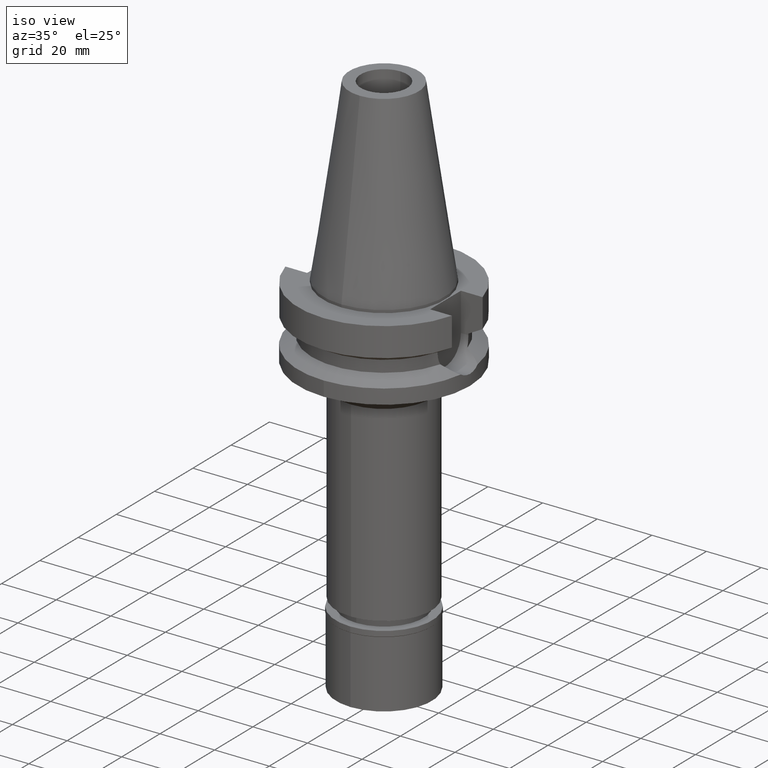
[diagram: clean part render]
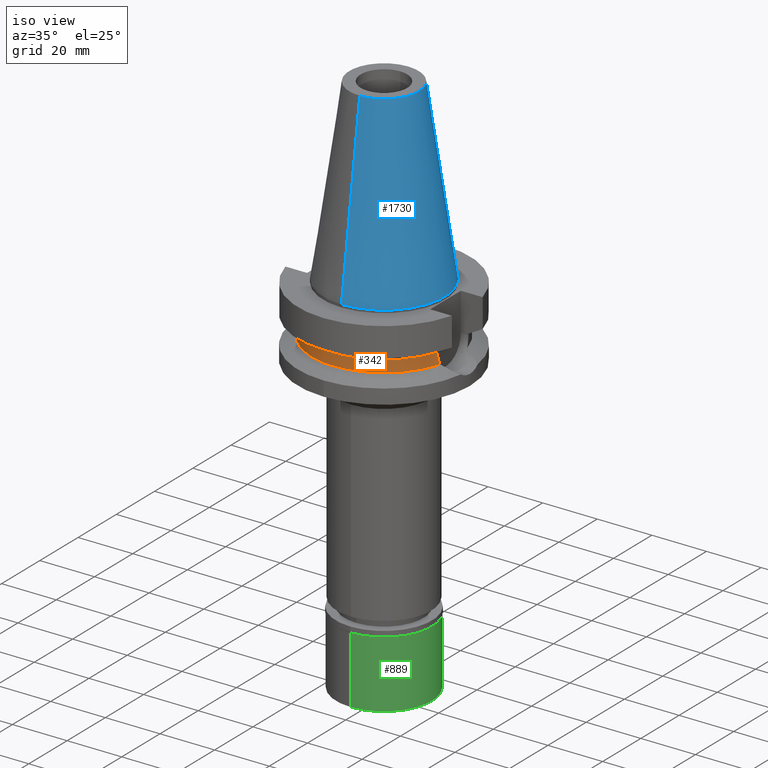
[diagram: same view with three faces highlighted in distinct colors, each labeled with its STEP entity id]
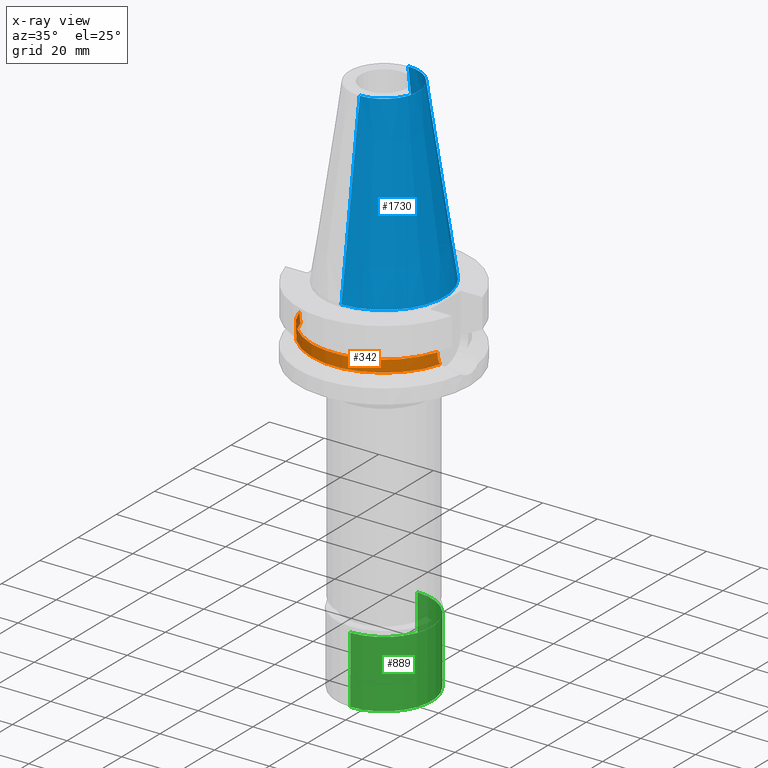
[diagram: x-ray of the same camera — body ghosted, the three highlighted faces saturated]
A machine part, iso view with three faces highlighted in distinct colors.
The next image is the same camera in x-ray (body ghosted, the three faces saturated) — at least one of them is partly hidden behind the body in this view.
Their STEP definitions:

[orange] entity #342 — the highlighted cylindrical surface (partial cylindrical patch) has radius 26.5 mm, axis along (0, 0, -1).
#35 = CARTESIAN_POINT ( 'NONE',  ( 25.29454292549445782, -7.902026734854635137, -16.48861329468615011 ) ) ;
#56 = CARTESIAN_POINT ( 'NONE',  ( -25.39161415870588456, -7.584927955021788293, -17.65164487468281251 ) ) ;
#69 = EDGE_CURVE ( 'NONE', #1964, #432, #2885, .T. ) ;
#75 = DIRECTION ( 'NONE',  ( -2.936722796047909751E-06, 9.210634716699719199E-06, 0.9999999999532699357 ) ) ;
#89 = CARTESIAN_POINT ( 'NONE',  ( -25.44390372128112077, -7.408325733453222206, -18.11690357828249986 ) ) ;
#186 = VERTEX_POINT ( 'NONE', #364 ) ;
#283 = CARTESIAN_POINT ( 'NONE',  ( -25.53175183775000079, -7.097862220092999941, -18.74774300138999905 ) ) ;
#284 = DIRECTION ( 'NONE',  ( 0.0000000000000000000, 0.0000000000000000000, -1.000000000000000000 ) ) ;
#342 = ADVANCED_FACE ( 'NONE', ( #1897 ), #1403, .T. ) ;
#364 = CARTESIAN_POINT ( 'NONE',  ( -25.24772413120999914, -8.049995415794001019, -14.45229202793000134 ) ) ;
#393 = VERTEX_POINT ( 'NONE', #3107 ) ;
#432 = VERTEX_POINT ( 'NONE', #3057 ) ;
#562 = LINE ( 'NONE', #1287, #1204 ) ;
#735 = LINE ( 'NONE', #1884, #3038 ) ;
#773 = EDGE_CURVE ( 'NONE', #432, #186, #562, .T. ) ;
#780 = CARTESIAN_POINT ( 'NONE',  ( -25.35408242312715998, -7.708967322931910893, -17.26962711324177135 ) ) ;
#799 = CIRCLE ( 'NONE', #1940, 26.50000000000000711 ) ;
#825 = CARTESIAN_POINT ( 'NONE',  ( 25.24772266958000344, -8.050000000000000711, -14.45225699861000024 ) ) ;
#911 = CIRCLE ( 'NONE', #1715, 26.50000000000000000 ) ;
#963 = CARTESIAN_POINT ( 'NONE',  ( 25.31953811419878164, -7.821417378317978120, -16.85482737181421342 ) ) ;
#1008 = CARTESIAN_POINT ( 'NONE',  ( 25.30215121708054227, -7.877593292754585086, -16.61077438410653784 ) ) ;
#1060 = CARTESIAN_POINT ( 'NONE',  ( -25.37569502948930733, -7.637838761477345528, -17.49780446183530813 ) ) ;
#1193 = CARTESIAN_POINT ( 'NONE',  ( 25.25396537036859712, -8.030898972450222217, -15.59374611992973492 ) ) ;
#1204 = VECTOR ( 'NONE', #75, 1000.000000000000114 ) ;
#1238 = CARTESIAN_POINT ( 'NONE',  ( -25.27267964220303043, -7.973335155931463802, -16.24499043154098388 ) ) ;
#1287 = CARTESIAN_POINT ( 'NONE',  ( -25.24772266958000344, -8.050000000000000711, -14.94999999999999929 ) ) ;
#1315 = ORIENTED_EDGE ( 'NONE', *, *, #773, .F. ) ;
#1403 = CYLINDRICAL_SURFACE ( 'NONE', #2095, 26.50000000000000000 ) ;
#1503 = CARTESIAN_POINT ( 'NONE',  ( -25.24772266958000699, -8.050000000000000711, -15.58980474858213938 ) ) ;
#1591 = EDGE_LOOP ( 'NONE', ( #2119, #1716, #3074, #2538, #1724, #1315 ) ) ;
#1628 = DIRECTION ( 'NONE',  ( 0.0000000000000000000, 0.0000000000000000000, 1.000000000000000000 ) ) ;
#1700 = CARTESIAN_POINT ( 'NONE',  ( 25.28049684872012293, -7.946995976261309380, -16.24428919065877608 ) ) ;
#1714 = EDGE_CURVE ( 'NONE', #1964, #393, #911, .T. ) ;
#1715 = AXIS2_PLACEMENT_3D ( 'NONE', #3052, #1628, #3018 ) ;
#1716 = ORIENTED_EDGE ( 'NONE', *, *, #1714, .T. ) ;
#1724 = ORIENTED_EDGE ( 'NONE', *, *, #2362, .T. ) ;
#1726 = CARTESIAN_POINT ( 'NONE',  ( -25.34384264181177926, -7.742472632649030295, -17.15618260535354977 ) ) ;
#1741 = CARTESIAN_POINT ( 'NONE',  ( -25.32546393109958061, -7.802212764474003137, -16.93200521438838990 ) ) ;
#1884 = CARTESIAN_POINT ( 'NONE',  ( 25.24772216363000155, -8.050001586837000289, -14.45224487378000156 ) ) ;
#1897 = FACE_OUTER_BOUND ( 'NONE', #1591, .T. ) ;
#1907 = EDGE_CURVE ( 'NONE', #2883, #393, #2079, .T. ) ;
#1940 = AXIS2_PLACEMENT_3D ( 'NONE', #2221, #284, #1966 ) ;
#1959 = CARTESIAN_POINT ( 'NONE',  ( 25.24772266958000699, -8.049999999999998934, -15.26998451552480596 ) ) ;
#1964 = VERTEX_POINT ( 'NONE', #2688 ) ;
#1966 = DIRECTION ( 'NONE',  ( 0.9527442516822307583, -0.3037735849057093818, 0.0000000000000000000 ) ) ;
#2079 = B_SPLINE_CURVE_WITH_KNOTS ( 'NONE', 3,
 ( #2864, #1959, #1193, #2196, #1700, #35, #1008, #2149, #3080, #963, #2620, #2443, #2130, #2918 ),
 .UNSPECIFIED., .F., .F.,
 ( 4, 2, 2, 1, 1, 2, 2, 4 ),
 ( 0.0000000000000000000, 0.2500000000000069389, 0.3750000000000104361, 0.4375000000000135447, 0.4687500000000150990, 0.4843750000000147105, 0.5000000000000143219, 1.000000000000000000 ),
 .UNSPECIFIED. ) ;
#2095 = AXIS2_PLACEMENT_3D ( 'NONE', #2854, #2810, #2403 ) ;
#2119 = ORIENTED_EDGE ( 'NONE', *, *, #69, .F. ) ;
#2130 = CARTESIAN_POINT ( 'NONE',  ( 25.43788225503733003, -7.435520914581282170, -18.11666952168581446 ) ) ;
#2149 = CARTESIAN_POINT ( 'NONE',  ( 25.31205175036245336, -7.845641664298890205, -16.75318037307338770 ) ) ;
#2172 = CARTESIAN_POINT ( 'NONE',  ( 25.24772266958000344, -8.050000000000000711, -14.94999999999999929 ) ) ;
#2196 = CARTESIAN_POINT ( 'NONE',  ( 25.27269347273437461, -7.971777372259774452, -16.08140504253947611 ) ) ;
#2220 = EDGE_CURVE ( 'NONE', #3112, #2883, #735, .T. ) ;
#2221 = CARTESIAN_POINT ( 'NONE',  ( 0.0000000000000000000, 0.0000000000000000000, -14.45225699861000024 ) ) ;
#2362 = EDGE_CURVE ( 'NONE', #3112, #186, #799, .T. ) ;
#2403 = DIRECTION ( 'NONE',  ( 0.0000000000000000000, -1.000000000000000000, 0.0000000000000000000 ) ) ;
#2443 = CARTESIAN_POINT ( 'NONE',  ( 25.36817666880170563, -7.663730637058529638, -17.48830498329490979 ) ) ;
#2455 = CARTESIAN_POINT ( 'NONE',  ( -25.24772266958000344, -8.050000000000000711, -14.94999999999999929 ) ) ;
#2538 = ORIENTED_EDGE ( 'NONE', *, *, #2220, .F. ) ;
#2620 = CARTESIAN_POINT ( 'NONE',  ( 25.32121190436317448, -7.815994543146043583, -16.87693897482722960 ) ) ;
#2680 = CARTESIAN_POINT ( 'NONE',  ( -25.32840508998330620, -7.792668837054353759, -16.96920308240299136 ) ) ;
#2688 = CARTESIAN_POINT ( 'NONE',  ( -25.53175183775000079, -7.097862220092999941, -18.74774300138999905 ) ) ;
#2696 = CARTESIAN_POINT ( 'NONE',  ( -25.32415339823800338, -7.806463147621001575, -16.91521530248343197 ) ) ;
#2810 = DIRECTION ( 'NONE',  ( 0.0000000000000000000, 0.0000000000000000000, -1.000000000000000000 ) ) ;
#2854 = CARTESIAN_POINT ( 'NONE',  ( 0.0000000000000000000, 0.0000000000000000000, 0.0000000000000000000 ) ) ;
#2864 = CARTESIAN_POINT ( 'NONE',  ( 25.24772266958000344, -8.050000000000000711, -14.94999999999999929 ) ) ;
#2876 = DIRECTION ( 'NONE',  ( 1.016459450809001804E-06, 3.187987735341003491E-06, -0.9999999999944017004 ) ) ;
#2883 = VERTEX_POINT ( 'NONE', #2172 ) ;
#2885 = B_SPLINE_CURVE_WITH_KNOTS ( 'NONE', 3,
 ( #283, #2924, #89, #56, #1060, #780, #1726, #2954, #2680, #1741, #2696, #1238, #1503, #2455 ),
 .UNSPECIFIED., .F., .F.,
 ( 4, 2, 2, 1, 1, 2, 2, 4 ),
 ( 0.0000000000000000000, 0.2499999999999951150, 0.3749999999999914513, 0.4374999999999895084, 0.4687499999999885647, 0.4843749999999894529, 0.4999999999999903411, 1.000000000000000000 ),
 .UNSPECIFIED. ) ;
#2918 = CARTESIAN_POINT ( 'NONE',  ( 25.53175183775000079, -7.097862220092999941, -18.74774300138999905 ) ) ;
#2924 = CARTESIAN_POINT ( 'NONE',  ( -25.48480632956524516, -7.266730116910204984, -18.43213421359635618 ) ) ;
#2954 = CARTESIAN_POINT ( 'NONE',  ( -25.33288764354210443, -7.778115188336424346, -17.02509724684081860 ) ) ;
#3018 = DIRECTION ( 'NONE',  ( 0.0000000000000000000, -1.000000000000000000, 0.0000000000000000000 ) ) ;
#3038 = VECTOR ( 'NONE', #2876, 1000.000000000000114 ) ;
#3052 = CARTESIAN_POINT ( 'NONE',  ( 0.0000000000000000000, 0.0000000000000000000, -18.74774300138999905 ) ) ;
#3057 = CARTESIAN_POINT ( 'NONE',  ( -25.24772266958000344, -8.050000000000000711, -14.94999999999999929 ) ) ;
#3074 = ORIENTED_EDGE ( 'NONE', *, *, #1907, .F. ) ;
#3080 = CARTESIAN_POINT ( 'NONE',  ( 25.31651430600430430, -7.831206233909829173, -16.81417435993497023 ) ) ;
#3107 = CARTESIAN_POINT ( 'NONE',  ( 25.53175183775000079, -7.097862220092999941, -18.74774300138999905 ) ) ;
#3112 = VERTEX_POINT ( 'NONE', #825 ) ;

[blue] entity #1730 — the highlighted conical surface has half-angle 8.297 deg.
#141 = EDGE_LOOP ( 'NONE', ( #300, #385, #2729, #514 ) ) ;
#143 = DIRECTION ( 'NONE',  ( 0.0000000000000000000, 0.0000000000000000000, -1.000000000000000000 ) ) ;
#193 = VERTEX_POINT ( 'NONE', #1359 ) ;
#297 = AXIS2_PLACEMENT_3D ( 'NONE', #2790, #1352, #1099 ) ;
#300 = ORIENTED_EDGE ( 'NONE', *, *, #2672, .T. ) ;
#350 = VECTOR ( 'NONE', #1339, 1000.000000000000114 ) ;
#385 = ORIENTED_EDGE ( 'NONE', *, *, #1249, .T. ) ;
#514 = ORIENTED_EDGE ( 'NONE', *, *, #3019, .F. ) ;
#622 = CARTESIAN_POINT ( 'NONE',  ( 0.0000000000000000000, 0.0000000000000000000, 65.40000000000000568 ) ) ;
#645 = CIRCLE ( 'NONE', #2897, 12.68766899429999917 ) ;
#913 = FACE_OUTER_BOUND ( 'NONE', #141, .T. ) ;
#941 = CARTESIAN_POINT ( 'NONE',  ( 0.0000000000000000000, -12.68766899429999917, 65.40000000000000568 ) ) ;
#1059 = DIRECTION ( 'NONE',  ( 0.0000000000000000000, 0.1443043893539925626, -0.9895333461855498891 ) ) ;
#1093 = DIRECTION ( 'NONE',  ( 0.0000000000000000000, 1.000000000000000000, 0.0000000000000000000 ) ) ;
#1099 = DIRECTION ( 'NONE',  ( 0.0000000000000000000, -1.000000000000000000, 0.0000000000000000000 ) ) ;
#1249 = EDGE_CURVE ( 'NONE', #193, #2758, #2844, .T. ) ;
#1332 = CARTESIAN_POINT ( 'NONE',  ( 0.0000000000000000000, 22.22500000000000142, 1.421085471519999843E-14 ) ) ;
#1339 = DIRECTION ( 'NONE',  ( 0.0000000000000000000, -0.1443043893539925626, -0.9895333461855498891 ) ) ;
#1352 = DIRECTION ( 'NONE',  ( 0.0000000000000000000, 0.0000000000000000000, -1.000000000000000000 ) ) ;
#1359 = CARTESIAN_POINT ( 'NONE',  ( 0.0000000000000000000, -12.68766899429999917, 65.40000000000000568 ) ) ;
#1608 = DIRECTION ( 'NONE',  ( 0.0000000000000000000, 0.0000000000000000000, -1.000000000000000000 ) ) ;
#1730 = ADVANCED_FACE ( 'NONE', ( #913 ), #2350, .T. ) ;
#1869 = VERTEX_POINT ( 'NONE', #2383 ) ;
#2116 = EDGE_CURVE ( 'NONE', #2165, #2758, #2510, .T. ) ;
#2165 = VERTEX_POINT ( 'NONE', #1332 ) ;
#2282 = CARTESIAN_POINT ( 'NONE',  ( 0.0000000000000000000, -22.22500000000000142, 0.0000000000000000000 ) ) ;
#2350 = CONICAL_SURFACE ( 'NONE', #297, 17.45633449714999941, 0.1448099680379422438 ) ;
#2383 = CARTESIAN_POINT ( 'NONE',  ( 0.0000000000000000000, 12.68766899429999917, 65.40000000000000568 ) ) ;
#2510 = CIRCLE ( 'NONE', #3006, 22.22500000000000142 ) ;
#2672 = EDGE_CURVE ( 'NONE', #1869, #193, #645, .T. ) ;
#2678 = LINE ( 'NONE', #2965, #2776 ) ;
#2729 = ORIENTED_EDGE ( 'NONE', *, *, #2116, .F. ) ;
#2758 = VERTEX_POINT ( 'NONE', #2282 ) ;
#2771 = CARTESIAN_POINT ( 'NONE',  ( 0.0000000000000000000, 0.0000000000000000000, 0.0000000000000000000 ) ) ;
#2776 = VECTOR ( 'NONE', #1059, 1000.000000000000114 ) ;
#2790 = CARTESIAN_POINT ( 'NONE',  ( 0.0000000000000000000, 0.0000000000000000000, 32.70000000000000284 ) ) ;
#2844 = LINE ( 'NONE', #941, #350 ) ;
#2897 = AXIS2_PLACEMENT_3D ( 'NONE', #622, #1608, #3030 ) ;
#2965 = CARTESIAN_POINT ( 'NONE',  ( 0.0000000000000000000, 12.68766899429999917, 65.40000000000000568 ) ) ;
#3006 = AXIS2_PLACEMENT_3D ( 'NONE', #2771, #143, #1093 ) ;
#3019 = EDGE_CURVE ( 'NONE', #1869, #2165, #2678, .T. ) ;
#3030 = DIRECTION ( 'NONE',  ( 0.0000000000000000000, 1.000000000000000000, 0.0000000000000000000 ) ) ;

[green] entity #889 — the highlighted cylindrical surface (partial cylindrical patch) has radius 17.5 mm, axis along (0, 0, -1).
#4 = LINE ( 'NONE', #1806, #1851 ) ;
#109 = DIRECTION ( 'NONE',  ( 0.0000000000000000000, 1.000000000000000000, 0.0000000000000000000 ) ) ;
#140 = EDGE_CURVE ( 'NONE', #231, #1150, #2655, .T. ) ;
#228 = CARTESIAN_POINT ( 'NONE',  ( 0.0000000000000000000, 0.0000000000000000000, 0.0000000000000000000 ) ) ;
#231 = VERTEX_POINT ( 'NONE', #1814 ) ;
#251 = DIRECTION ( 'NONE',  ( 0.0000000000000000000, -1.000000000000000000, 0.0000000000000000000 ) ) ;
#313 = ORIENTED_EDGE ( 'NONE', *, *, #640, .T. ) ;
#338 = DIRECTION ( 'NONE',  ( 0.0000000000000000000, 0.0000000000000000000, -1.000000000000000000 ) ) ;
#569 = ORIENTED_EDGE ( 'NONE', *, *, #625, .T. ) ;
#599 = AXIS2_PLACEMENT_3D ( 'NONE', #1122, #1343, #1107 ) ;
#625 = EDGE_CURVE ( 'NONE', #1518, #2840, #650, .T. ) ;
#637 = LINE ( 'NONE', #1141, #850 ) ;
#640 = EDGE_CURVE ( 'NONE', #2840, #231, #4, .T. ) ;
#650 = CIRCLE ( 'NONE', #2304, 17.50000000000000000 ) ;
#850 = VECTOR ( 'NONE', #894, 1000.000000000000000 ) ;
#889 = ADVANCED_FACE ( 'NONE', ( #1867 ), #2661, .T. ) ;
#894 = DIRECTION ( 'NONE',  ( 0.0000000000000000000, 0.0000000000000000000, -1.000000000000000000 ) ) ;
#1107 = DIRECTION ( 'NONE',  ( 0.0000000000000000000, -1.000000000000000000, 0.0000000000000000000 ) ) ;
#1122 = CARTESIAN_POINT ( 'NONE',  ( 0.0000000000000000000, 0.0000000000000000000, -26.70000000000000284 ) ) ;
#1141 = CARTESIAN_POINT ( 'NONE',  ( 0.0000000000000000000, 17.50000000000000000, -2.100000000000000089 ) ) ;
#1150 = VERTEX_POINT ( 'NONE', #1279 ) ;
#1279 = CARTESIAN_POINT ( 'NONE',  ( 0.0000000000000000000, 17.50000000000000000, -26.70000000000000284 ) ) ;
#1343 = DIRECTION ( 'NONE',  ( 0.0000000000000000000, 0.0000000000000000000, 1.000000000000000000 ) ) ;
#1384 = ORIENTED_EDGE ( 'NONE', *, *, #2664, .F. ) ;
#1435 = DIRECTION ( 'NONE',  ( 0.0000000000000000000, 0.0000000000000000000, -1.000000000000000000 ) ) ;
#1518 = VERTEX_POINT ( 'NONE', #2214 ) ;
#1768 = ORIENTED_EDGE ( 'NONE', *, *, #140, .T. ) ;
#1806 = CARTESIAN_POINT ( 'NONE',  ( 0.0000000000000000000, -17.50000000000000000, -2.100000000000000089 ) ) ;
#1814 = CARTESIAN_POINT ( 'NONE',  ( 0.0000000000000000000, -17.50000000000000000, -26.70000000000000284 ) ) ;
#1851 = VECTOR ( 'NONE', #2761, 1000.000000000000000 ) ;
#1867 = FACE_OUTER_BOUND ( 'NONE', #2157, .T. ) ;
#1948 = AXIS2_PLACEMENT_3D ( 'NONE', #228, #1435, #251 ) ;
#2157 = EDGE_LOOP ( 'NONE', ( #569, #313, #1768, #1384 ) ) ;
#2214 = CARTESIAN_POINT ( 'NONE',  ( 0.0000000000000000000, 17.50000000000000000, -2.100000000000000089 ) ) ;
#2270 = CARTESIAN_POINT ( 'NONE',  ( 0.0000000000000000000, 0.0000000000000000000, -2.100000000000000089 ) ) ;
#2304 = AXIS2_PLACEMENT_3D ( 'NONE', #2270, #338, #109 ) ;
#2655 = CIRCLE ( 'NONE', #599, 17.50000000000000000 ) ;
#2661 = CYLINDRICAL_SURFACE ( 'NONE', #1948, 17.50000000000000000 ) ;
#2664 = EDGE_CURVE ( 'NONE', #1518, #1150, #637, .T. ) ;
#2761 = DIRECTION ( 'NONE',  ( 0.0000000000000000000, 0.0000000000000000000, -1.000000000000000000 ) ) ;
#2840 = VERTEX_POINT ( 'NONE', #3086 ) ;
#3086 = CARTESIAN_POINT ( 'NONE',  ( 0.0000000000000000000, -17.50000000000000000, -2.100000000000000089 ) ) ;